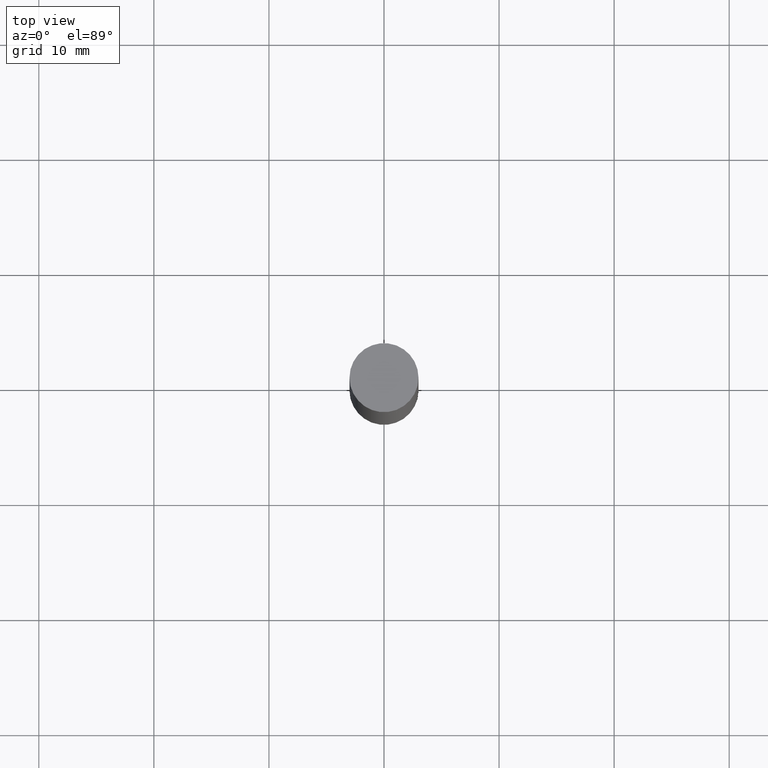
[diagram: clean part render]
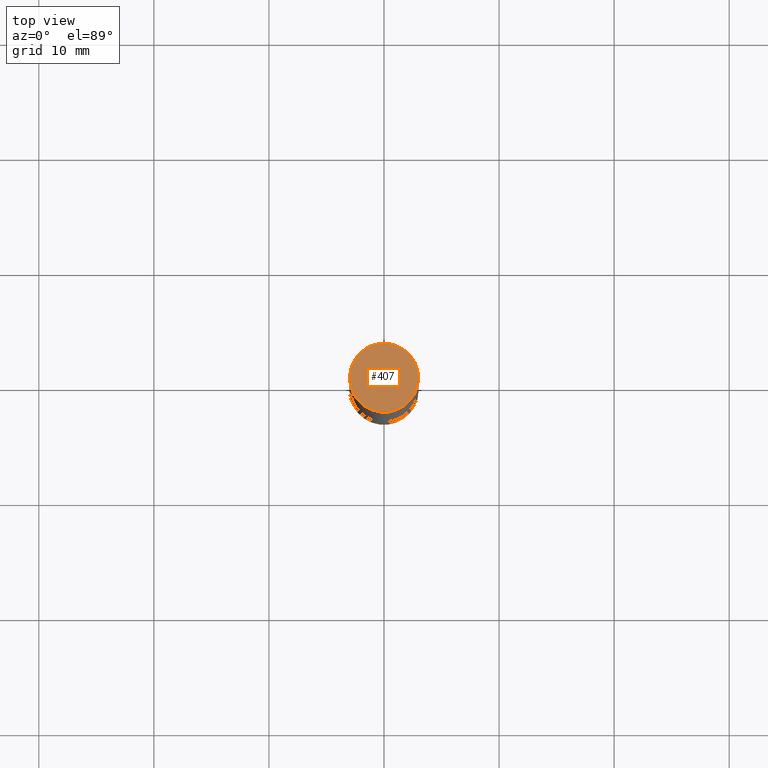
[diagram: same view with one face highlighted and labeled with its STEP entity id]
A machine part, top view. The second image highlights one B-rep face of the part: STEP entity #407.
In plain terms, the highlighted planar face has unit normal (0, 0, 1).
Its self-contained STEP definition (entity closure, byte-faithful):
#91 = CARTESIAN_POINT ( 'NONE',  ( 8.246878922348086105E-16, 0.1181000000000000105, 0.000000000000000000 ) ) ;
#123 = AXIS2_PLACEMENT_3D ( 'NONE', #516, #344, #400 ) ;
#131 = AXIS2_PLACEMENT_3D ( 'NONE', #91, #511, #252 ) ;
#132 = EDGE_CURVE ( 'NONE', #259, #177, #411, .T. ) ;
#177 = VERTEX_POINT ( 'NONE', #652 ) ;
#252 = DIRECTION ( 'NONE',  ( -1.000000000000000000, 6.982962677686265922E-15, -9.839502134516470631E-33 ) ) ;
#256 = FACE_OUTER_BOUND ( 'NONE', #521, .T. ) ;
#259 = VERTEX_POINT ( 'NONE', #512 ) ;
#262 = CIRCLE ( 'NONE', #343, 0.1180999999999999966 ) ;
#343 = AXIS2_PLACEMENT_3D ( 'NONE', #585, #595, #475 ) ;
#344 = DIRECTION ( 'NONE',  ( 2.445468806185136597E-29, 3.492890411551752677E-15, 1.000000000000000000 ) ) ;
#370 = PLANE ( 'NONE',  #131 ) ;
#400 = DIRECTION ( 'NONE',  ( 1.000000000000000000, -6.982962677686266711E-15, 0.000000000000000000 ) ) ;
#407 = ADVANCED_FACE ( 'NONE', ( #256 ), #370, .T. ) ;
#411 = CIRCLE ( 'NONE', #123, 0.1180999999999999966 ) ;
#475 = DIRECTION ( 'NONE',  ( 1.000000000000000000, -6.982962677686266711E-15, 0.000000000000000000 ) ) ;
#511 = DIRECTION ( 'NONE',  ( 2.438088387897959769E-29, 3.492890411551753071E-15, 1.000000000000000000 ) ) ;
#512 = CARTESIAN_POINT ( 'NONE',  ( -0.1180999999999999966, -1.304844015212474234E-17, 5.463695987328556019E-16 ) ) ;
#516 = CARTESIAN_POINT ( 'NONE',  ( 6.065496279980994755E-29, 1.747461519580534218E-18, 5.463695987328526437E-16 ) ) ;
#521 = EDGE_LOOP ( 'NONE', ( #598, #605 ) ) ;
#585 = CARTESIAN_POINT ( 'NONE',  ( 6.065496279980994755E-29, 1.747461519580534218E-18, 5.463695987328526437E-16 ) ) ;
#595 = DIRECTION ( 'NONE',  ( 2.445468806185136597E-29, 3.492890411551752677E-15, 1.000000000000000000 ) ) ;
#598 = ORIENTED_EDGE ( 'NONE', *, *, #620, .T. ) ;
#605 = ORIENTED_EDGE ( 'NONE', *, *, #132, .T. ) ;
#620 = EDGE_CURVE ( 'NONE', #177, #259, #262, .T. ) ;
#652 = CARTESIAN_POINT ( 'NONE',  ( 0.1180999999999999966, -8.229404307151675296E-16, 5.463695987328526437E-16 ) ) ;